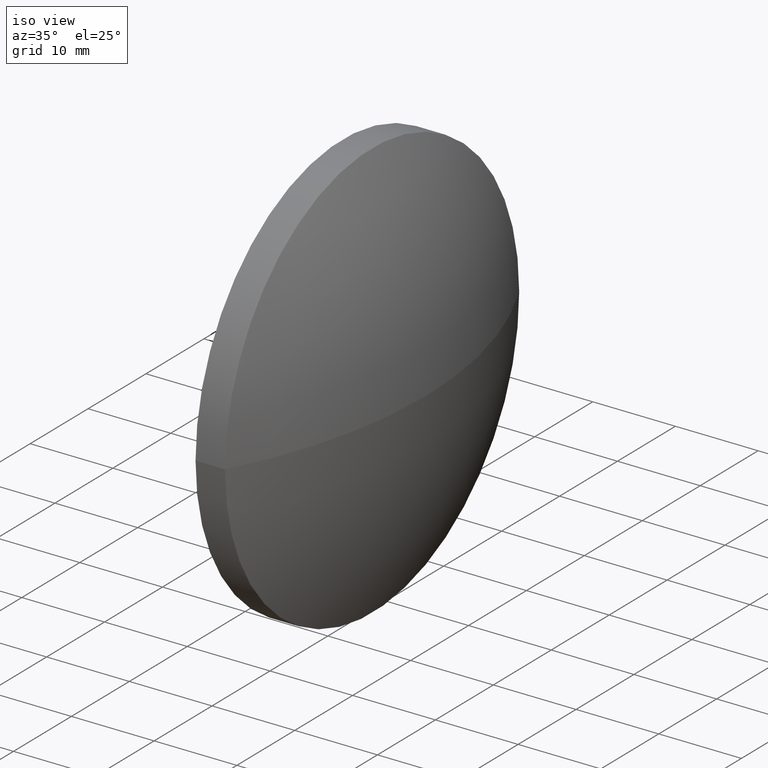
[diagram: clean part render]
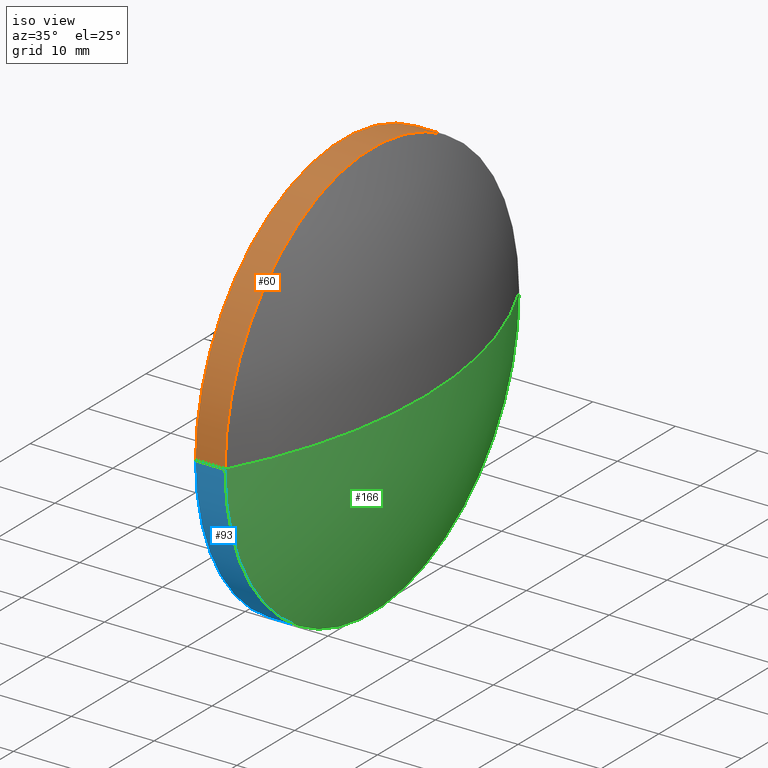
[diagram: same view with three faces highlighted in distinct colors, each labeled with its STEP entity id]
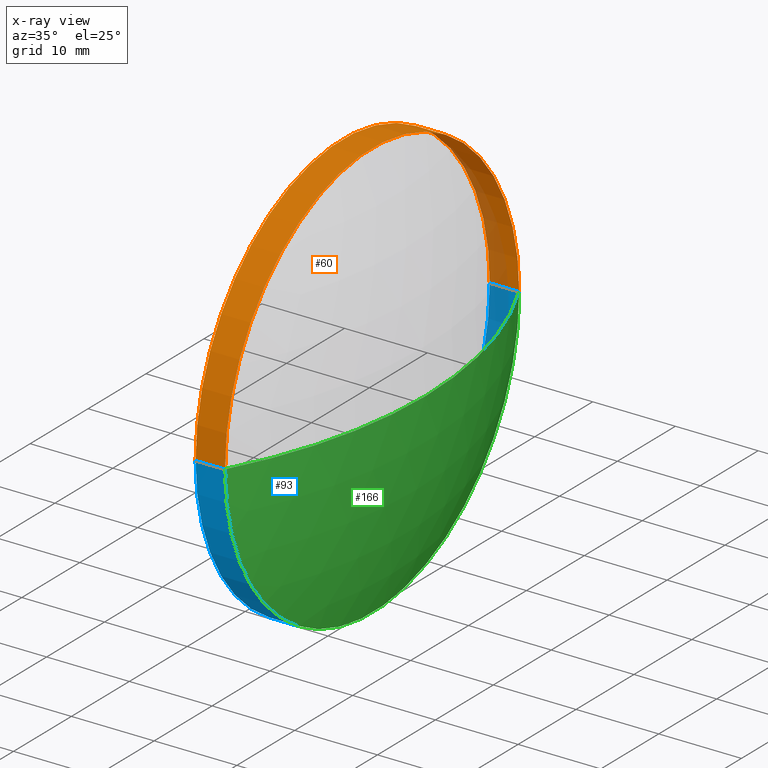
[diagram: x-ray of the same camera — body ghosted, the three highlighted faces saturated]
A machine part, iso view with three faces highlighted in distinct colors.
The next image is the same camera in x-ray (body ghosted, the three faces saturated) — at least one of them is partly hidden behind the body in this view.
Their STEP definitions:

[orange] entity #60 — the highlighted cylindrical surface (partial cylindrical patch) has radius 25.4 mm, axis along (-1, -0, -0).
#13 = DIRECTION ( 'NONE',  ( -1.000000000000000000, -2.863878963965248009E-14, -0.000000000000000000 ) ) ;
#14 = FACE_OUTER_BOUND ( 'NONE', #18, .T. ) ;
#15 = EDGE_CURVE ( 'NONE', #67, #63, #87, .T. ) ;
#16 = ORIENTED_EDGE ( 'NONE', *, *, #159, .F. ) ;
#17 = VECTOR ( 'NONE', #64, 1000.000000000000000 ) ;
#18 = EDGE_LOOP ( 'NONE', ( #154, #46, #38, #16 ) ) ;
#22 = CIRCLE ( 'NONE', #34, 25.40000018338206544 ) ;
#26 = CARTESIAN_POINT ( 'NONE',  ( 2398.181304954599000, -199.4492977715789834, 3.110602892291852711E-15 ) ) ;
#27 = DIRECTION ( 'NONE',  ( 3.496765406644805851E-14, -1.000000000000000000, 0.000000000000000000 ) ) ;
#29 = CARTESIAN_POINT ( 'NONE',  ( 2401.740445960312172, -250.2492981383400661, -3.110602892292074775E-15 ) ) ;
#31 = EDGE_CURVE ( 'NONE', #48, #67, #22, .T. ) ;
#34 = AXIS2_PLACEMENT_3D ( 'NONE', #128, #13, #88 ) ;
#38 = ORIENTED_EDGE ( 'NONE', *, *, #51, .F. ) ;
#46 = ORIENTED_EDGE ( 'NONE', *, *, #15, .T. ) ;
#47 = CARTESIAN_POINT ( 'NONE',  ( 2354.877492954598893, -224.8492979549595532, 0.000000000000000000 ) ) ;
#48 = VERTEX_POINT ( 'NONE', #29 ) ;
#51 = EDGE_CURVE ( 'NONE', #73, #63, #139, .T. ) ;
#58 = DIRECTION ( 'NONE',  ( -1.000000000000000000, -2.863878963965248009E-14, -0.000000000000000000 ) ) ;
#60 = ADVANCED_FACE ( 'NONE', ( #14 ), #76, .T. ) ;
#63 = VERTEX_POINT ( 'NONE', #26 ) ;
#64 = DIRECTION ( 'NONE',  ( -1.000000000000000000, -2.863878963965248009E-14, -0.000000000000000000 ) ) ;
#67 = VERTEX_POINT ( 'NONE', #91 ) ;
#73 = VERTEX_POINT ( 'NONE', #112 ) ;
#76 = CYLINDRICAL_SURFACE ( 'NONE', #153, 25.40000018338073318 ) ;
#79 = LINE ( 'NONE', #117, #106 ) ;
#87 = LINE ( 'NONE', #146, #17 ) ;
#88 = DIRECTION ( 'NONE',  ( 3.496765406644427829E-14, -1.000000000000000000, 0.000000000000000000 ) ) ;
#91 = CARTESIAN_POINT ( 'NONE',  ( 2401.740445960310353, -199.4492977715763971, 0.000000000000000000 ) ) ;
#101 = DIRECTION ( 'NONE',  ( -1.000000000000000000, -2.863878963965248009E-14, -0.000000000000000000 ) ) ;
#104 = DIRECTION ( 'NONE',  ( -1.000000000000000000, -2.863878963965248009E-14, -0.000000000000000000 ) ) ;
#106 = VECTOR ( 'NONE', #58, 1000.000000000000000 ) ;
#111 = CARTESIAN_POINT ( 'NONE',  ( 2398.181304954599909, -224.8492979549583026, 0.000000000000000000 ) ) ;
#112 = CARTESIAN_POINT ( 'NONE',  ( 2398.181304954600819, -250.2492981383376218, 0.000000000000000000 ) ) ;
#117 = CARTESIAN_POINT ( 'NONE',  ( 2354.877492954599802, -250.2492981383402935, 0.000000000000000000 ) ) ;
#121 = AXIS2_PLACEMENT_3D ( 'NONE', #111, #104, #27 ) ;
#128 = CARTESIAN_POINT ( 'NONE',  ( 2401.740445960311263, -224.8492979549582174, 0.000000000000000000 ) ) ;
#139 = CIRCLE ( 'NONE', #121, 25.40000018337931920 ) ;
#143 = DIRECTION ( 'NONE',  ( 3.496765406644610845E-14, -1.000000000000000000, 0.000000000000000000 ) ) ;
#146 = CARTESIAN_POINT ( 'NONE',  ( 2354.877492954597983, -199.4492977715788413, 3.110602892291936330E-15 ) ) ;
#153 = AXIS2_PLACEMENT_3D ( 'NONE', #47, #101, #143 ) ;
#154 = ORIENTED_EDGE ( 'NONE', *, *, #31, .T. ) ;
#159 = EDGE_CURVE ( 'NONE', #48, #73, #79, .T. ) ;

[blue] entity #93 — the highlighted cylindrical surface (partial cylindrical patch) has radius 25.4 mm, axis along (-1, -0, -0).
#3 = DIRECTION ( 'NONE',  ( -1.000000000000000000, -2.863878963965248009E-14, -0.000000000000000000 ) ) ;
#15 = EDGE_CURVE ( 'NONE', #67, #63, #87, .T. ) ;
#17 = VECTOR ( 'NONE', #64, 1000.000000000000000 ) ;
#23 = AXIS2_PLACEMENT_3D ( 'NONE', #77, #133, #107 ) ;
#26 = CARTESIAN_POINT ( 'NONE',  ( 2398.181304954599000, -199.4492977715789834, 3.110602892291852711E-15 ) ) ;
#28 = AXIS2_PLACEMENT_3D ( 'NONE', #36, #3, #42 ) ;
#29 = CARTESIAN_POINT ( 'NONE',  ( 2401.740445960312172, -250.2492981383400661, -3.110602892292074775E-15 ) ) ;
#36 = CARTESIAN_POINT ( 'NONE',  ( 2398.181304954599909, -224.8492979549583026, 0.000000000000000000 ) ) ;
#42 = DIRECTION ( 'NONE',  ( 3.496765406644805851E-14, -1.000000000000000000, 0.000000000000000000 ) ) ;
#48 = VERTEX_POINT ( 'NONE', #29 ) ;
#58 = DIRECTION ( 'NONE',  ( -1.000000000000000000, -2.863878963965248009E-14, -0.000000000000000000 ) ) ;
#63 = VERTEX_POINT ( 'NONE', #26 ) ;
#64 = DIRECTION ( 'NONE',  ( -1.000000000000000000, -2.863878963965248009E-14, -0.000000000000000000 ) ) ;
#67 = VERTEX_POINT ( 'NONE', #91 ) ;
#71 = DIRECTION ( 'NONE',  ( 3.496765406644610845E-14, -1.000000000000000000, 0.000000000000000000 ) ) ;
#73 = VERTEX_POINT ( 'NONE', #112 ) ;
#77 = CARTESIAN_POINT ( 'NONE',  ( 2401.740445960311263, -224.8492979549582174, 0.000000000000000000 ) ) ;
#78 = CARTESIAN_POINT ( 'NONE',  ( 2354.877492954598893, -224.8492979549595532, 0.000000000000000000 ) ) ;
#79 = LINE ( 'NONE', #117, #106 ) ;
#80 = EDGE_CURVE ( 'NONE', #63, #73, #131, .T. ) ;
#87 = LINE ( 'NONE', #146, #17 ) ;
#91 = CARTESIAN_POINT ( 'NONE',  ( 2401.740445960310353, -199.4492977715763971, 0.000000000000000000 ) ) ;
#93 = ADVANCED_FACE ( 'NONE', ( #105 ), #135, .T. ) ;
#100 = AXIS2_PLACEMENT_3D ( 'NONE', #78, #137, #71 ) ;
#105 = FACE_OUTER_BOUND ( 'NONE', #132, .T. ) ;
#106 = VECTOR ( 'NONE', #58, 1000.000000000000000 ) ;
#107 = DIRECTION ( 'NONE',  ( 3.496765406644427829E-14, -1.000000000000000000, 0.000000000000000000 ) ) ;
#110 = EDGE_CURVE ( 'NONE', #67, #48, #136, .T. ) ;
#112 = CARTESIAN_POINT ( 'NONE',  ( 2398.181304954600819, -250.2492981383376218, 0.000000000000000000 ) ) ;
#116 = ORIENTED_EDGE ( 'NONE', *, *, #80, .F. ) ;
#117 = CARTESIAN_POINT ( 'NONE',  ( 2354.877492954599802, -250.2492981383402935, 0.000000000000000000 ) ) ;
#131 = CIRCLE ( 'NONE', #28, 25.40000018337931920 ) ;
#132 = EDGE_LOOP ( 'NONE', ( #156, #148, #158, #116 ) ) ;
#133 = DIRECTION ( 'NONE',  ( -1.000000000000000000, -2.863878963965248009E-14, -0.000000000000000000 ) ) ;
#135 = CYLINDRICAL_SURFACE ( 'NONE', #100, 25.40000018338073318 ) ;
#136 = CIRCLE ( 'NONE', #23, 25.40000018338206544 ) ;
#137 = DIRECTION ( 'NONE',  ( -1.000000000000000000, -2.863878963965248009E-14, -0.000000000000000000 ) ) ;
#146 = CARTESIAN_POINT ( 'NONE',  ( 2354.877492954597983, -199.4492977715788413, 3.110602892291936330E-15 ) ) ;
#148 = ORIENTED_EDGE ( 'NONE', *, *, #110, .T. ) ;
#156 = ORIENTED_EDGE ( 'NONE', *, *, #15, .F. ) ;
#158 = ORIENTED_EDGE ( 'NONE', *, *, #159, .T. ) ;
#159 = EDGE_CURVE ( 'NONE', #48, #73, #79, .T. ) ;

[green] entity #166 — the highlighted spherical surface has radius 53.3038 mm.
#10 = DIRECTION ( 'NONE',  ( -3.507240206365479357E-30, 1.224646799147353207E-16, -1.000000000000000000 ) ) ;
#12 = CIRCLE ( 'NONE', #50, 53.30381200000022801 ) ;
#23 = AXIS2_PLACEMENT_3D ( 'NONE', #77, #133, #107 ) ;
#29 = CARTESIAN_POINT ( 'NONE',  ( 2401.740445960312172, -250.2492981383400661, -3.110602892292074775E-15 ) ) ;
#40 = DIRECTION ( 'NONE',  ( -0.000000000000000000, 0.000000000000000000, -1.000000000000000000 ) ) ;
#48 = VERTEX_POINT ( 'NONE', #29 ) ;
#50 = AXIS2_PLACEMENT_3D ( 'NONE', #163, #152, #92 ) ;
#55 = CARTESIAN_POINT ( 'NONE',  ( 2354.877492954598893, -224.8492979549595532, 0.000000000000000000 ) ) ;
#57 = DIRECTION ( 'NONE',  ( -2.499385277642401143E-14, 1.000000000000000000, 0.000000000000000000 ) ) ;
#61 = ORIENTED_EDGE ( 'NONE', *, *, #110, .F. ) ;
#62 = AXIS2_PLACEMENT_3D ( 'NONE', #55, #40, #57 ) ;
#67 = VERTEX_POINT ( 'NONE', #91 ) ;
#68 = ORIENTED_EDGE ( 'NONE', *, *, #124, .F. ) ;
#77 = CARTESIAN_POINT ( 'NONE',  ( 2401.740445960311263, -224.8492979549582174, 0.000000000000000000 ) ) ;
#89 = ORIENTED_EDGE ( 'NONE', *, *, #97, .T. ) ;
#91 = CARTESIAN_POINT ( 'NONE',  ( 2401.740445960310353, -199.4492977715763971, 0.000000000000000000 ) ) ;
#92 = DIRECTION ( 'NONE',  ( 1.000000000000000000, 0.000000000000000000, 0.000000000000000000 ) ) ;
#94 = FACE_OUTER_BOUND ( 'NONE', #155, .T. ) ;
#96 = CARTESIAN_POINT ( 'NONE',  ( 2354.877492954598893, -224.8492979549595532, 0.000000000000000000 ) ) ;
#97 = EDGE_CURVE ( 'NONE', #157, #48, #114, .T. ) ;
#107 = DIRECTION ( 'NONE',  ( 3.496765406644427829E-14, -1.000000000000000000, 0.000000000000000000 ) ) ;
#109 = SPHERICAL_SURFACE ( 'NONE', #62, 53.30381200000017117 ) ;
#110 = EDGE_CURVE ( 'NONE', #67, #48, #136, .T. ) ;
#114 = CIRCLE ( 'NONE', #147, 53.30381200000017117 ) ;
#120 = DIRECTION ( 'NONE',  ( 0.000000000000000000, 1.000000000000000000, 1.224646799147353207E-16 ) ) ;
#124 = EDGE_CURVE ( 'NONE', #157, #67, #12, .T. ) ;
#133 = DIRECTION ( 'NONE',  ( -1.000000000000000000, -2.863878963965248009E-14, -0.000000000000000000 ) ) ;
#136 = CIRCLE ( 'NONE', #23, 25.40000018338206544 ) ;
#147 = AXIS2_PLACEMENT_3D ( 'NONE', #96, #10, #120 ) ;
#152 = DIRECTION ( 'NONE',  ( -0.000000000000000000, 0.000000000000000000, 1.000000000000000000 ) ) ;
#155 = EDGE_LOOP ( 'NONE', ( #68, #89, #61 ) ) ;
#157 = VERTEX_POINT ( 'NONE', #161 ) ;
#161 = CARTESIAN_POINT ( 'NONE',  ( 2408.181304954599455, -224.8492979549580468, 0.000000000000000000 ) ) ;
#163 = CARTESIAN_POINT ( 'NONE',  ( 2354.877492954598893, -224.8492979549595532, 0.000000000000000000 ) ) ;
#166 = ADVANCED_FACE ( 'NONE', ( #94 ), #109, .T. ) ;